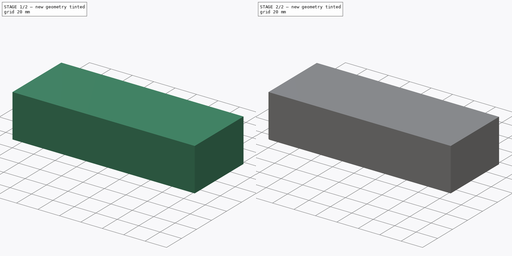
[diagram: build sequence overview — one tinted view per stage of 2, left to right]
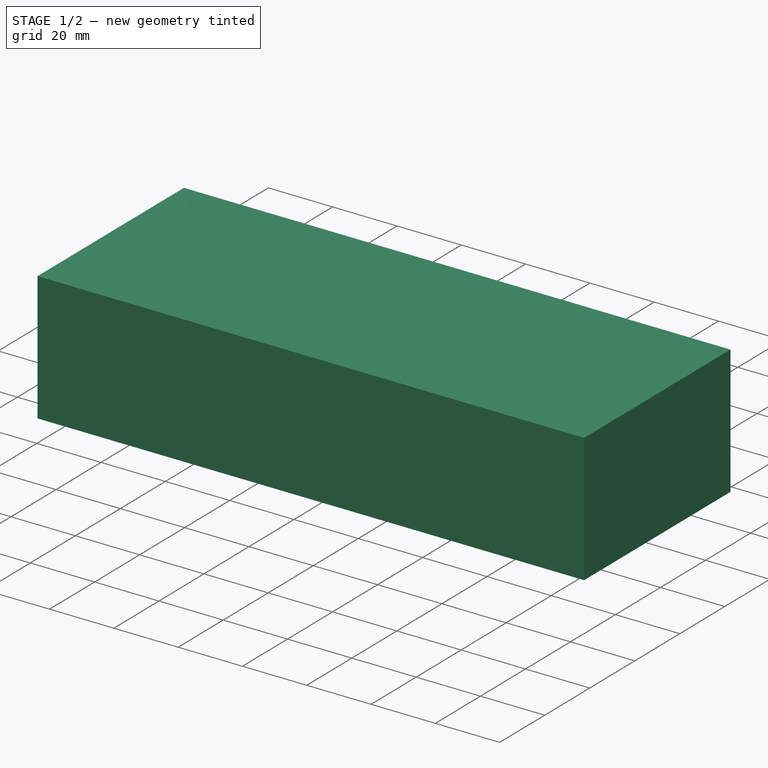
[diagram: stage 1 of 2 — iso view after this stage's code; geometry added in this stage tinted green]
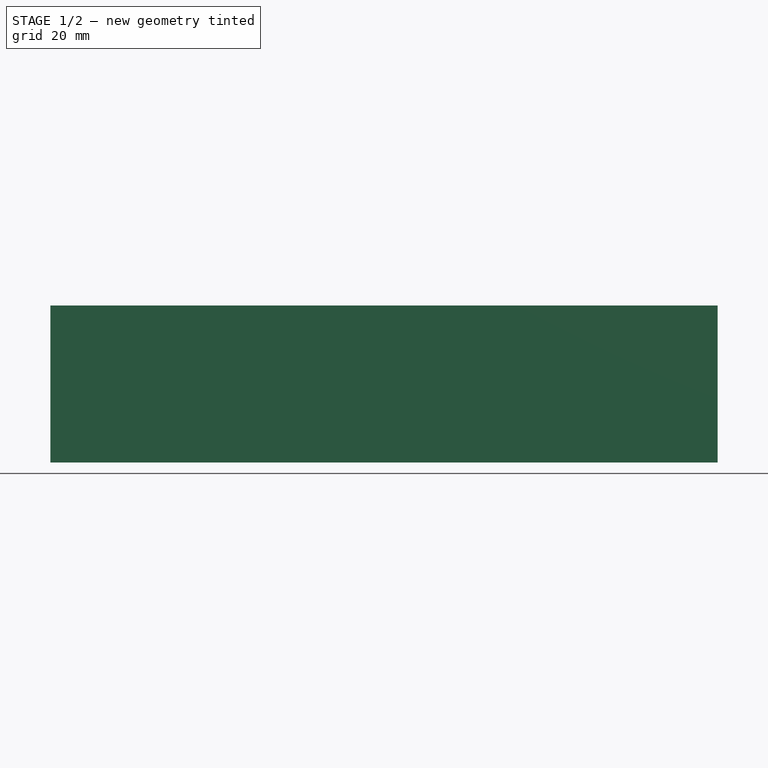
[diagram: stage 1 of 2 — front view after this stage's code; geometry added in this stage tinted green]
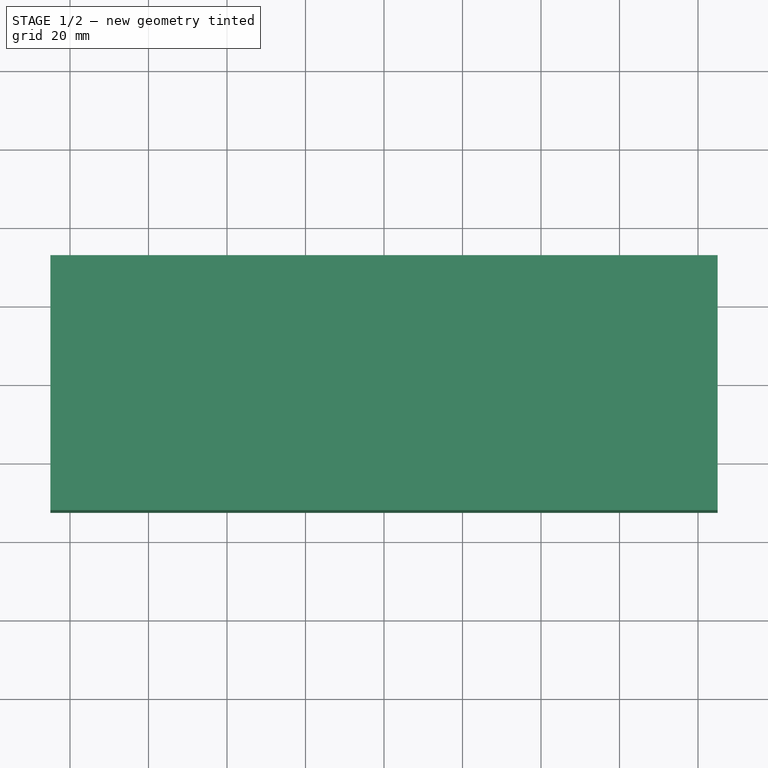
[diagram: stage 1 of 2 — top view after this stage's code; geometry added in this stage tinted green]
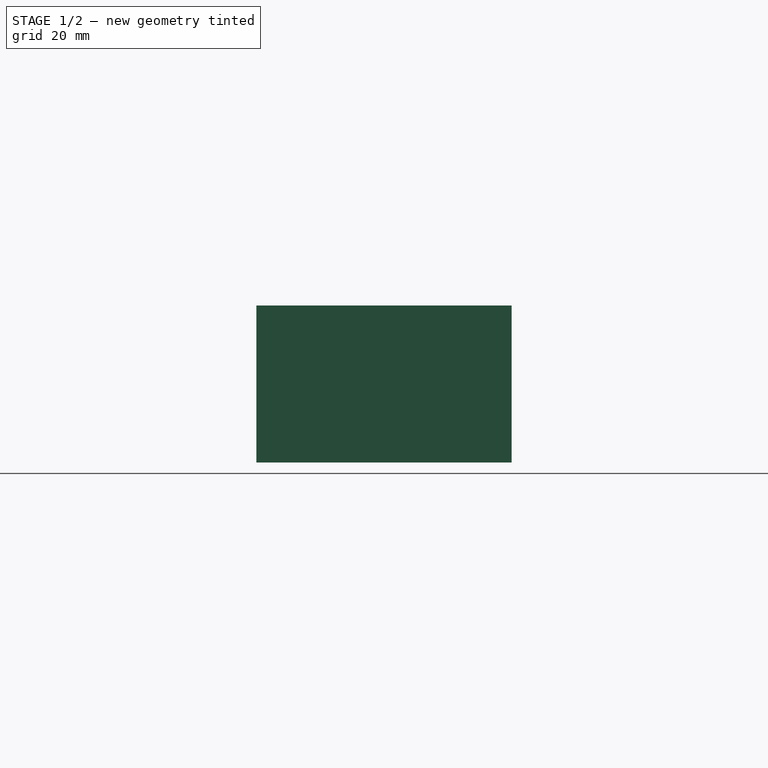
[diagram: stage 1 of 2 — right view after this stage's code; geometry added in this stage tinted green]
FCSTD DOCUMENT  (FreeCAD 0.21R33771 (Git))
Label: Кассета под батарейки
License: All rights reserved
LicenseURL: https://en.wikipedia.org/wiki/All_rights_reserved
objects: Sketcher::SketchObject×2, PartDesign::Fillet×2, PartDesign::Pad×1, PartDesign::Pocket×1, PartDesign::Body×1
note: 11 computed .brp shape members not serialized (recipe doc carries the construction recipe); baked Part::Feature solids carry a one-line shape summary decoded from their .brp

FEATURE [Sketcher::SketchObject] Sketch
  FullyConstrained = true
  MapMode = 5
  Support = -> [XY_Plane]
  sketch-geometry (51):
    g0: Circle CenterX=-73.5 CenterY=21 CenterZ=0 NormalX=0 NormalY=0 NormalZ=1 AngleXU=0 Radius=9.5
    g1: Circle CenterX=-52.5 CenterY=21 CenterZ=0 NormalX=0 NormalY=0 NormalZ=1 AngleXU=0 Radius=9.5
    g2: LineSegment StartX=-73.5 StartY=21 StartZ=0 EndX=-52.5 EndY=21 EndZ=0
    g3: Circle CenterX=-31.5 CenterY=21 CenterZ=0 NormalX=0 NormalY=0 NormalZ=1 AngleXU=0 Radius=9.5
    g4: LineSegment StartX=-52.5 StartY=21 StartZ=0 EndX=-31.5 EndY=21 EndZ=0
    g5: Circle CenterX=-10.5 CenterY=21 CenterZ=0 NormalX=0 NormalY=0 NormalZ=1 AngleXU=0 Radius=9.5
    g6: LineSegment StartX=-31.5 StartY=21 StartZ=0 EndX=-10.5 EndY=21 EndZ=0
    g7: Circle CenterX=-73.5 CenterY=-3e-16 CenterZ=0 NormalX=0 NormalY=0 NormalZ=1 AngleXU=0 Radius=9.5
    g8: LineSegment StartX=-73.5 StartY=21 StartZ=0 EndX=-73.5 EndY=0 EndZ=0
    g9: Circle CenterX=-52.5 CenterY=-3e-16 CenterZ=0 NormalX=0 NormalY=0 NormalZ=1 AngleXU=0 Radius=9.5
    g10: LineSegment StartX=-73.5 StartY=-3e-16 StartZ=0 EndX=-52.5 EndY=-3e-16 EndZ=0
    g11: Circle CenterX=-31.5 CenterY=-3e-16 CenterZ=0 NormalX=0 NormalY=0 NormalZ=1 AngleXU=0 Radius=9.5
    g12: LineSegment StartX=-52.5 StartY=-3e-16 StartZ=0 EndX=-31.5 EndY=-3e-16 EndZ=0
    g13: Circle CenterX=-10.5 CenterY=-3e-16 CenterZ=0 NormalX=0 NormalY=0 NormalZ=1 AngleXU=0 Radius=9.5
    g14: LineSegment StartX=-31.5 StartY=-3e-16 StartZ=0 EndX=-10.5 EndY=-3e-16 EndZ=0
    g15: Circle CenterX=-73.5 CenterY=-21 CenterZ=0 NormalX=0 NormalY=0 NormalZ=1 AngleXU=0 Radius=9.5
    g16: LineSegment StartX=-73.5 StartY=-3e-16 StartZ=0 EndX=-73.5 EndY=-21 EndZ=0
    g17: Circle CenterX=-52.5 CenterY=-21 CenterZ=0 NormalX=0 NormalY=0 NormalZ=1 AngleXU=0 Radius=9.5
    g18: LineSegment StartX=-73.5 StartY=-21 StartZ=0 EndX=-52.5 EndY=-21 EndZ=0
    g19: Circle CenterX=-31.5 CenterY=-21 CenterZ=0 NormalX=0 NormalY=0 NormalZ=1 AngleXU=0 Radius=9.5
    g20: LineSegment StartX=-52.5 StartY=-21 StartZ=0 EndX=-31.5 EndY=-21 EndZ=0
    g21: Circle CenterX=-10.5 CenterY=-21 CenterZ=0 NormalX=0 NormalY=0 NormalZ=1 AngleXU=0 Radius=9.5
    g22: LineSegment StartX=-31.5 StartY=-21 StartZ=0 EndX=-10.5 EndY=-21 EndZ=0
    g23: GeomPoint X=-73.5 Y=11.5 Z=0
    g24: GeomPoint X=-73.5 Y=9.5 Z=0
    g25: GeomPoint X=-64 Y=21 Z=0
    g26: GeomPoint X=-62 Y=21 Z=0
    g27: LineSegment StartX=-10.5 StartY=21 StartZ=0 EndX=10.5 EndY=21 EndZ=0
    g28: LineSegment StartX=10.5 StartY=21 StartZ=0 EndX=31.5 EndY=21 EndZ=0
    g29: LineSegment StartX=-10.5 StartY=-3e-16 StartZ=0 EndX=10.5 EndY=-3e-16 EndZ=0
    g30: LineSegment StartX=10.5 StartY=-3e-16 StartZ=0 EndX=31.5 EndY=-3e-16 EndZ=0
    g31: LineSegment StartX=-10.5 StartY=-21 StartZ=0 EndX=10.5 EndY=-21 EndZ=0
    g32: LineSegment StartX=10.5 StartY=-21 StartZ=0 EndX=31.5 EndY=-21 EndZ=0
    g33: Circle CenterX=10.5 CenterY=21 CenterZ=0 NormalX=0 NormalY=0 NormalZ=1 AngleXU=0 Radius=9.5
    g34: Circle CenterX=31.5 CenterY=21 CenterZ=0 NormalX=0 NormalY=0 NormalZ=1 AngleXU=0 Radius=9.5
    g35: Circle CenterX=31.5 CenterY=-3e-16 CenterZ=0 NormalX=0 NormalY=0 NormalZ=1 AngleXU=0 Radius=9.5
    g36: Circle CenterX=10.5 CenterY=-3e-16 CenterZ=0 NormalX=0 NormalY=0 NormalZ=1 AngleXU=0 Radius=9.5
    g37: Circle CenterX=10.5 CenterY=-21 CenterZ=0 NormalX=0 NormalY=0 NormalZ=1 AngleXU=0 Radius=9.5
    g38: Circle CenterX=31.5 CenterY=-21 CenterZ=0 NormalX=0 NormalY=0 NormalZ=1 AngleXU=0 Radius=9.5
    g39: Circle CenterX=52.5 CenterY=21 CenterZ=0 NormalX=0 NormalY=0 NormalZ=1 AngleXU=0 Radius=9.5
    g40: Circle CenterX=73.5 CenterY=21 CenterZ=0 NormalX=0 NormalY=0 NormalZ=1 AngleXU=0 Radius=9.5
    g41: Circle CenterX=52.5 CenterY=-3e-16 CenterZ=0 NormalX=0 NormalY=0 NormalZ=1 AngleXU=0 Radius=9.5
    g42: Circle CenterX=52.5 CenterY=-21 CenterZ=0 NormalX=0 NormalY=0 NormalZ=1 AngleXU=0 Radius=9.5
    g43: Circle CenterX=73.5 CenterY=-21 CenterZ=0 NormalX=0 NormalY=0 NormalZ=1 AngleXU=0 Radius=9.5
    g44: LineSegment StartX=31.5 StartY=-3e-16 StartZ=0 EndX=52.5 EndY=-3e-16 EndZ=0
    g45: LineSegment StartX=31.5 StartY=21 StartZ=0 EndX=52.5 EndY=21 EndZ=0
    g46: LineSegment StartX=52.5 StartY=21 StartZ=0 EndX=73.5 EndY=21 EndZ=0
    g47: LineSegment StartX=31.5 StartY=-21 StartZ=0 EndX=52.5 EndY=-21 EndZ=0
    g48: LineSegment StartX=52.5 StartY=-21 StartZ=0 EndX=73.5 EndY=-21 EndZ=0
    g49: LineSegment StartX=52.5 StartY=-3e-16 StartZ=0 EndX=73.5 EndY=-3e-16 EndZ=0
    g50: Circle CenterX=73.5 CenterY=-3e-16 CenterZ=0 NormalX=0 NormalY=0 NormalZ=1 AngleXU=0 Radius=9.5
  constraints (125):
    c: Diameter(g0) = 19
    c: Coincident(g0,g2)
    c: Coincident(g1,g2)
    c: Coincident(g1,g4)
    c: Coincident(g3,g4)
    c: Equal(g2,g4)
    c: Parallel(g4,g2)
    c: Coincident(g3,g6)
    c: Coincident(g5,g6)
    c: Equal(g2,g6)
    c: Parallel(g6,g2)
    c: Coincident(g0,g8)
    c: Coincident(g7,g8)
    c: Perpendicular(g8,g2)
    c: Coincident(g7,g10)
    c: Coincident(g9,g10)
    c: Equal(g2,g10)
    c: Parallel(g10,g2)
    c: Coincident(g9,g12)
    c: Coincident(g11,g12)
    c: Equal(g2,g12)
    c: Parallel(g12,g2)
    c: Coincident(g11,g14)
    c: Coincident(g13,g14)
    c: Equal(g2,g14)
    c: Parallel(g14,g2)
    c: Coincident(g7,g16)
    c: Coincident(g15,g16)
    c: Equal(g8,g16)
    c: Perpendicular(g16,g2)
    c: Coincident(g15,g18)
    c: Coincident(g17,g18)
    c: Equal(g2,g18)
    c: Parallel(g18,g2)
    c: Coincident(g17,g20)
    c: Coincident(g19,g20)
    c: Equal(g2,g20)
    c: Parallel(g20,g2)
    c: Coincident(g19,g22)
    c: Coincident(g21,g22)
    c: Equal(g2,g22)
    c: Parallel(g22,g2)
    c: Horizontal(g2)
    c: PointOnObject(g23,g0)
    c: PointOnObject(g24,g7)
    c: PointOnObject(g23,g8)
    c: PointOnObject(g24,g8)
    c: DistanceY(g24,g23) = 2
    c: PointOnObject(g25,g0)
    c: PointOnObject(g26,g1)
    c: PointOnObject(g25,g2)
    c: PointOnObject(g26,g2)
    c: DistanceX(g25,g26) = 2
    c: Equal(g1,g0)
    c: Equal(g0,g7)
    c: Equal(g7,g9)
    c: Equal(g9,g15)
    c: Equal(g15,g17)
    c: Equal(g17,g19)
    c: Equal(g19,g21)
    c: Equal(g21,g13)
    c: Equal(g13,g11)
    c: Equal(g11,g3)
    c: Equal(g3,g5)
    c: Coincident(g27,g5)
    c: Horizontal(g27)
    c: Coincident(g28,g27)
    c: Horizontal(g28)
    c: Coincident(g29,g13)
    c: Coincident(g30,g29)
    c: Horizontal(g30)
    c: Coincident(g31,g21)
    c: Horizontal(g31)
    c: Coincident(g32,g31)
    c: Horizontal(g32)
    c: Coincident(g33,g27)
    c: Coincident(g34,g28)
    c: Coincident(g35,g30)
    c: Coincident(g36,g29)
    c: Coincident(g37,g31)
    c: Coincident(g38,g32)
    c: Equal(g0,g33)
    c: Equal(g33,g34)
    c: Equal(g34,g36)
    c: Equal(g36,g35)
    c: Equal(g35,g37)
    c: Equal(g37,g38)
    c: Horizontal(g29)
    c: Equal(g2,g27)
    c: Equal(g27,g28)
    c: Equal(g28,g30)
    c: Equal(g30,g29)
    c: Equal(g29,g31)
    c: Equal(g31,g32)
    c: Coincident(g44,g41)
    c: Coincident(g45,g34)
    c: Coincident(g45,g39)
    c: Horizontal(g45)
    c: Coincident(g45,g46)
    c: Coincident(g46,g40)
    c: Coincident(g47,g42)
    c: Coincident(g47,g48)
    c: Coincident(g48,g43)
    c: Horizontal(g48)
    c: Coincident(g47,g38)
    c: Coincident(g44,g35)
    c: Horizontal(g44)
    c: Coincident(g49,g41)
    c: Horizontal(g49)
    c: Coincident(g50,g49)
    c: Equal(g0,g39)
    c: Equal(g39,g40)
    c: Equal(g40,g41)
    c: Equal(g41,g50)
    c: Equal(g50,g42)
    c: Equal(g42,g43)
    c: Horizontal(g47)
    c: Horizontal(g46)
    c: Equal(g8,g45)
    c: Equal(g45,g46)
    c: Equal(g46,g44)
    c: Equal(g44,g49)
    c: Equal(g49,g47)
    c: Equal(g47,g48)
    c: Symmetric(g15,g40,g-1)
FEATURE [Sketcher::SketchObject] Sketch001
  ExternalGeometry = -> [Sketch]
  FullyConstrained = true
  MapMode = 5
  Support = -> [XY_Plane]
  sketch-geometry (6):
    g0: LineSegment StartX=85 StartY=32.5 StartZ=0 EndX=-85 EndY=32.5 EndZ=0
    g1: LineSegment StartX=-85 StartY=32.5 StartZ=0 EndX=-85 EndY=-32.5 EndZ=0
    g2: LineSegment StartX=-85 StartY=-32.5 StartZ=0 EndX=85 EndY=-32.5 EndZ=0
    g3: LineSegment StartX=85 StartY=-32.5 StartZ=0 EndX=85 EndY=32.5 EndZ=0
    g4: GeomPoint X=73.5 Y=30.5 Z=0
    g5: GeomPoint X=83 Y=21 Z=0
  constraints (15):
    c: Coincident(g0,g1)
    c: Coincident(g1,g2)
    c: Coincident(g2,g3)
    c: Coincident(g3,g0)
    c: Horizontal(g0)
    c: Horizontal(g2)
    c: Vertical(g1)
    c: Vertical(g3)
    c: Symmetric(g1,g0,g-1)
    c: DistanceY(g4,g0) = 2
    c: DistanceX(g5,g0) = 2
    c: Vertical(g4,g-3)
    c: Horizontal(g-3,g5)
    c: PointOnObject(g5,g-3)
    c: PointOnObject(g4,g-3)
FEATURE [PartDesign::Pad] Pad
  Direction = (0,0,1)
  Length = 40
  Length2 = 10
  Profile = -> Sketch001
  ReferenceAxis = -> Sketch001 [N_Axis]
  Type = 0
FEATURE [PartDesign::Pocket] Pocket
  BaseFeature = -> Pad
  Direction = (0,0,-1)
  Length = 36
  Length2 = 5
  Profile = -> Sketch
  ReferenceAxis = -> Sketch [N_Axis]
  Reversed = true
  Type = 0
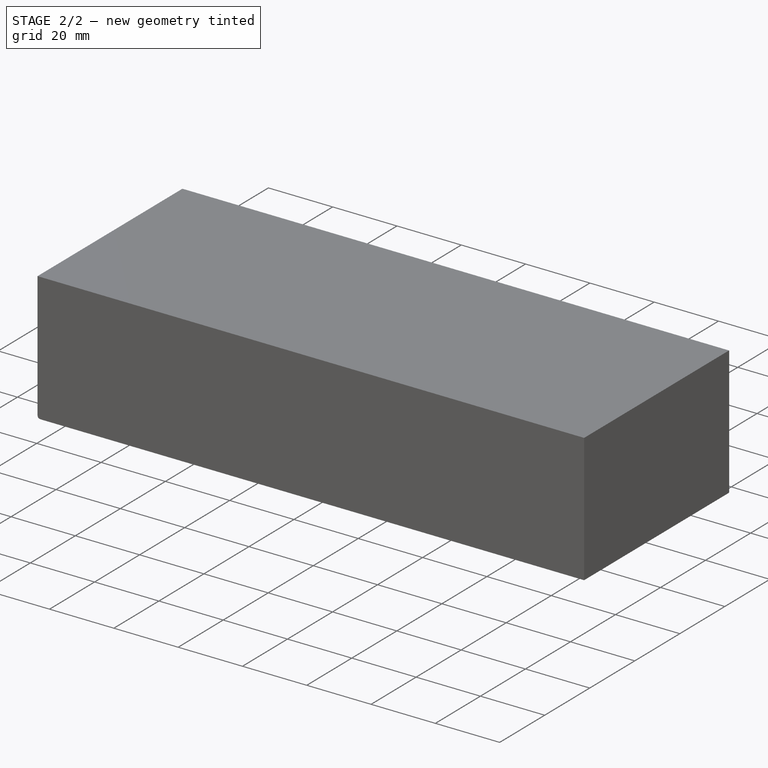
[diagram: stage 2 of 2 — iso view after this stage's code; geometry added in this stage tinted green]
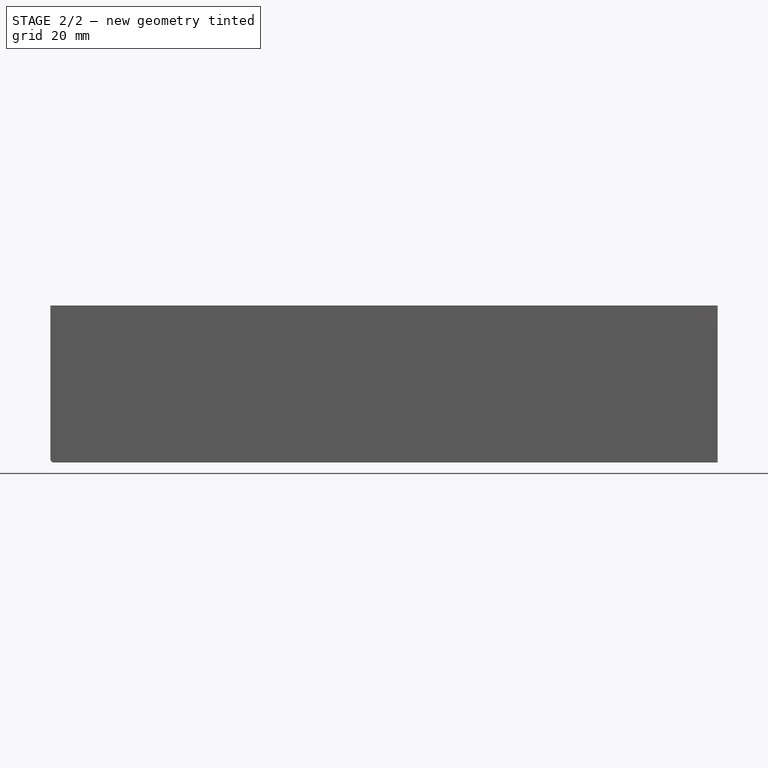
[diagram: stage 2 of 2 — front view after this stage's code; geometry added in this stage tinted green]
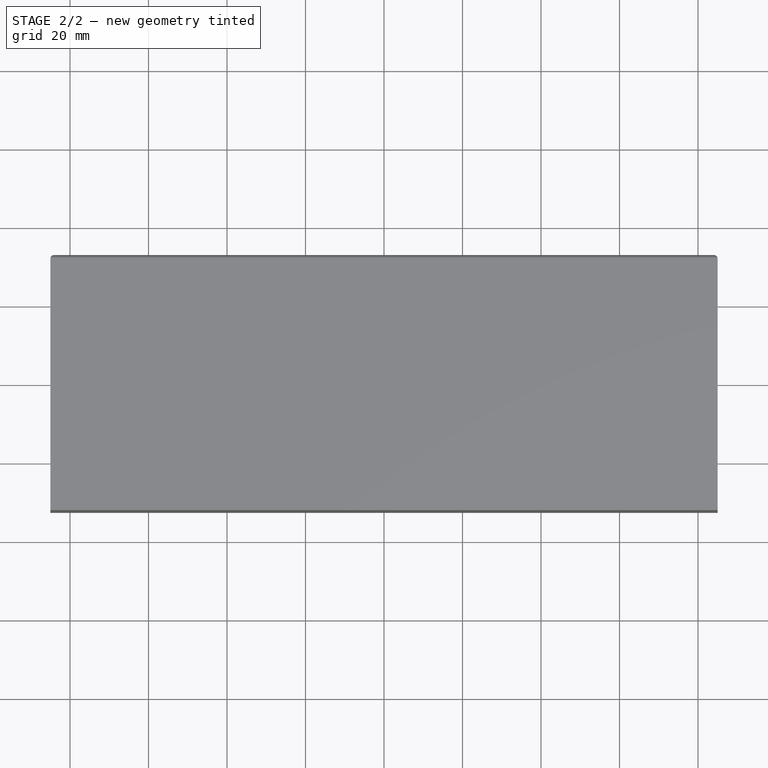
[diagram: stage 2 of 2 — top view after this stage's code; geometry added in this stage tinted green]
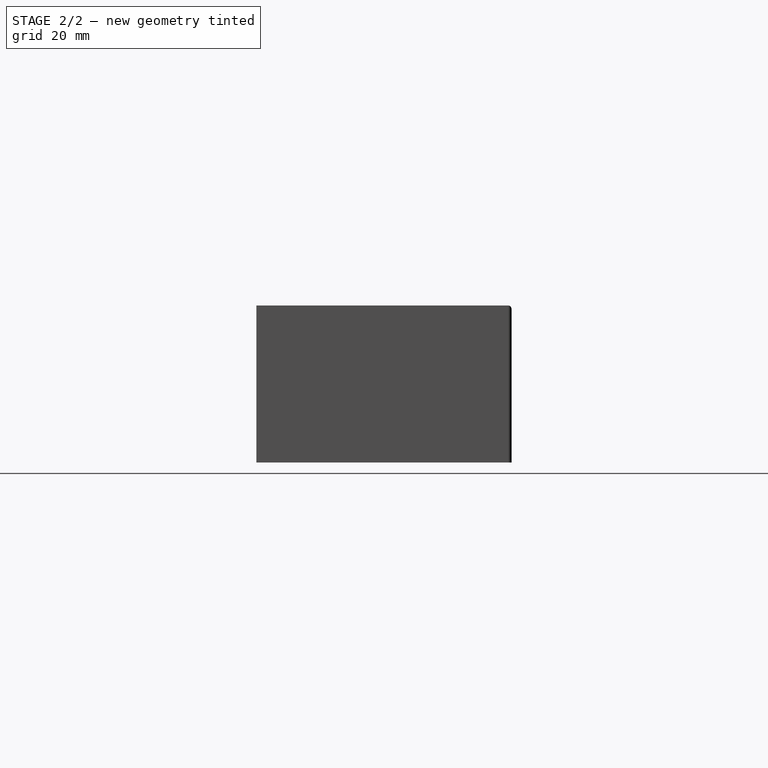
[diagram: stage 2 of 2 — right view after this stage's code; geometry added in this stage tinted green]
FEATURE [PartDesign::Fillet] Fillet
  Base = -> Pocket [Face54,Face37,Face38,Face50,Face49,Face53,Face48,Face52,Face47,Face36,Face42,Face46,Face34,Face35,Face51,Face33,Face41,Face45,Face44,Face43,Face40,Face39,Face32,Face31]
  BaseFeature = -> Pocket
  Radius = 1.5
  SupportTransform = false
  UseAllEdges = false
FEATURE [PartDesign::Fillet] Fillet001
  Base = -> Fillet [Edge13,Edge15,Edge14,Edge16,Edge10,Edge17,Edge11,Edge19,Edge18,Edge12,Edge20,Edge23,Edge26,Edge25,Edge22,Edge24,Edge21,Edge28,Edge27,Edge29,Edge34,Edge31,Edge32,Edge33,Edge35,Edge30,Edge8,Edge3]
  BaseFeature = -> Fillet
  Radius = 0.9
  SupportTransform = false
  UseAllEdges = false
FEATURE [PartDesign::Body] Body  label="Тело"
  Group = -> [Sketch,Sketch001,Pad,Pocket,Fillet,Fillet001]
  Origin = -> Origin
  Tip = -> Fillet001
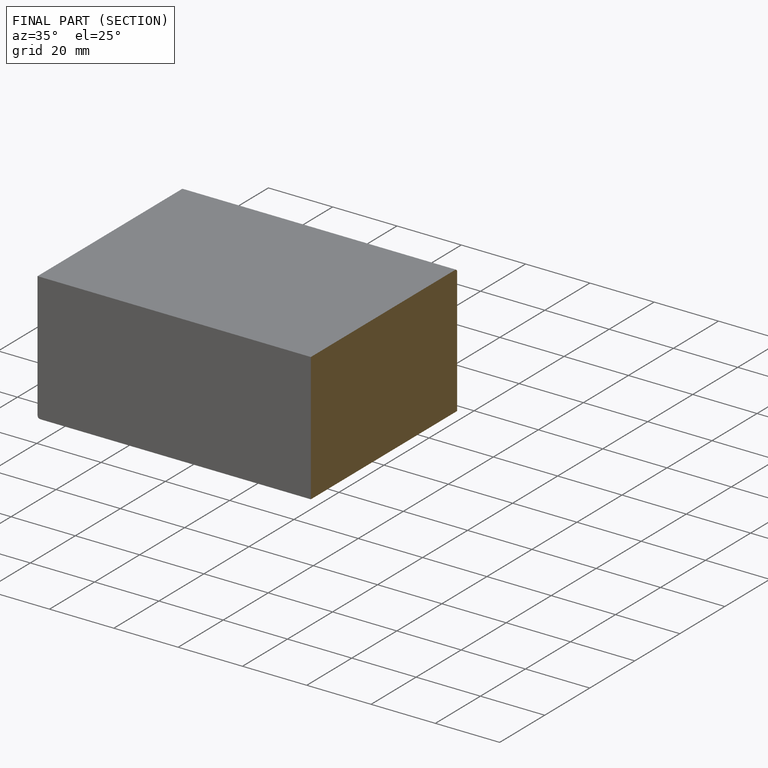
[diagram: finished part — half-section view (interior)]
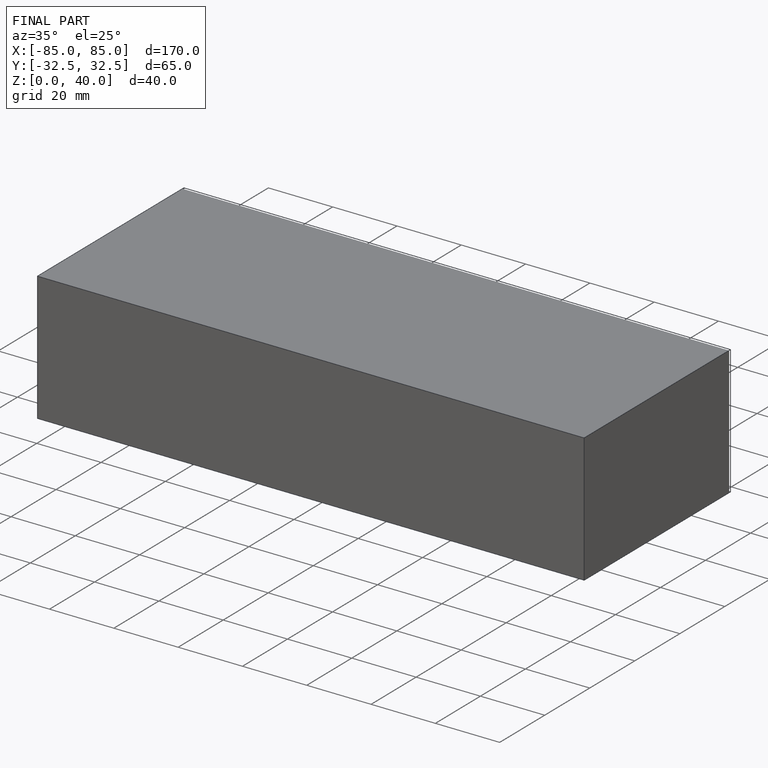
[diagram: finished part — iso view with bounding-box wireframe]
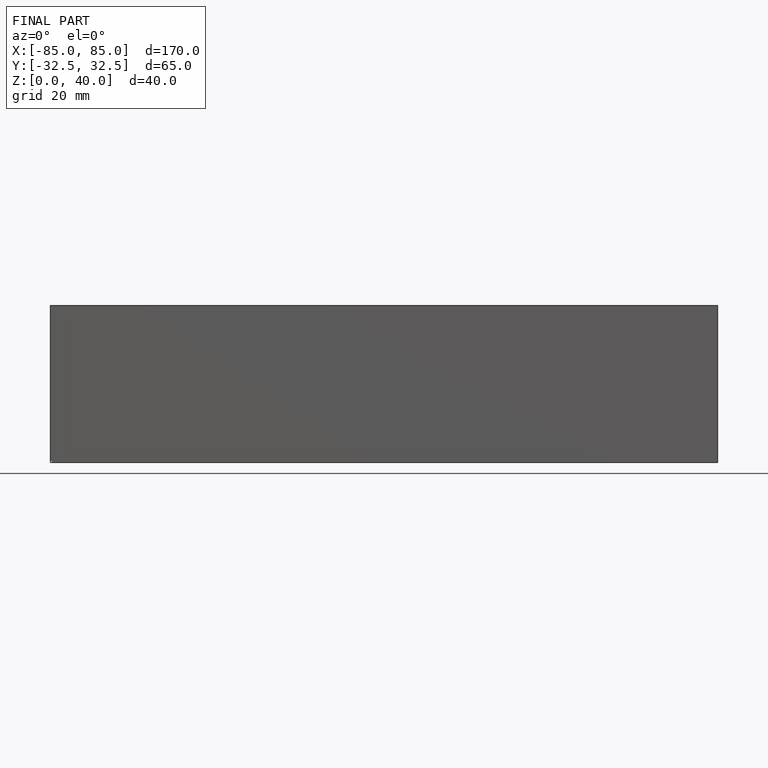
[diagram: finished part — front view with bounding-box wireframe]
